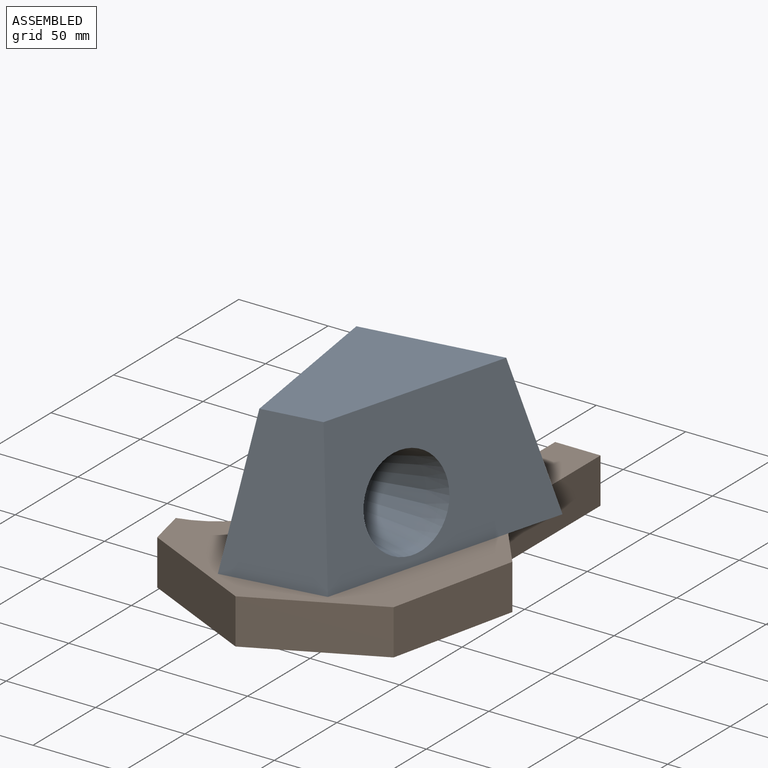
[diagram: assembled view]
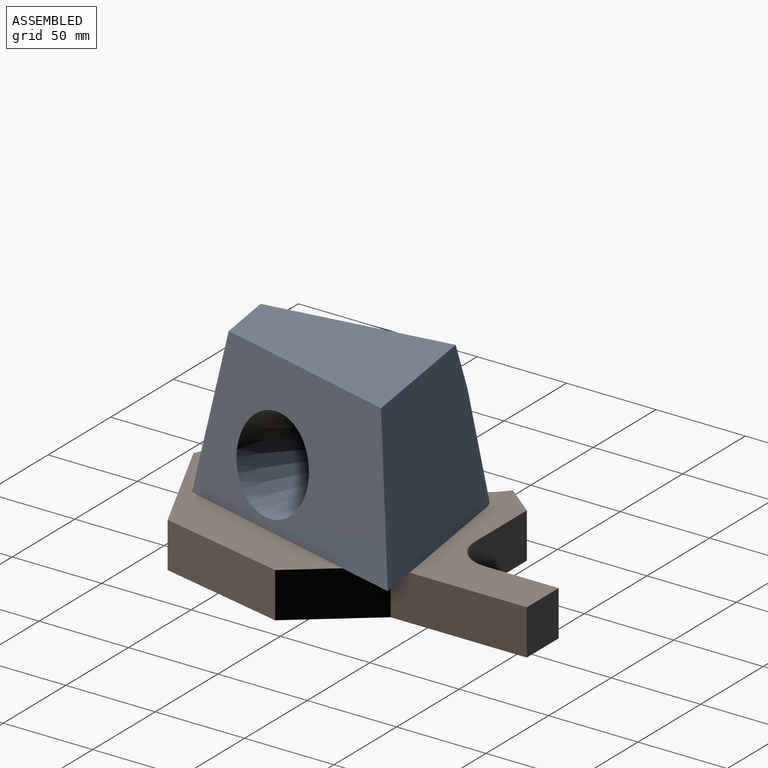
[diagram: assembled view, second angle]
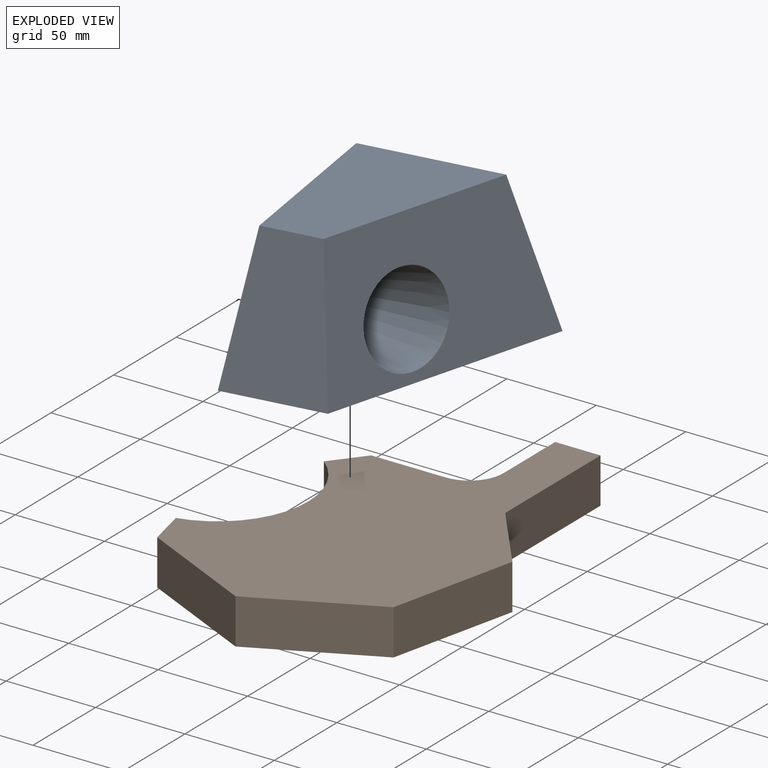
[diagram: exploded view]
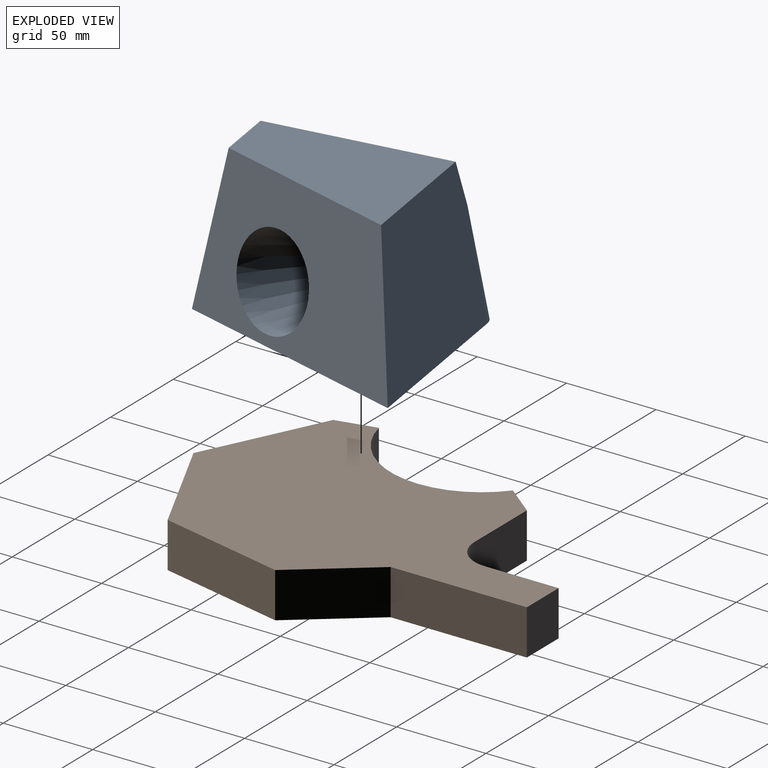
[diagram: exploded view, second angle]
ASSEMBLY  parts=2 mates=2
PART A: 8 faces, bbox 120.2x128.2x80.5 mm
  f0: cone r=10.16mm half-angle=10deg, axis (0,0,-1), area 466.9mm2, adj f1,f4,f6
  f1: plane 118.04x80.52mm, normal (-0.98,0,0.17), area 8496.4mm2, adj f0,f2,f4,f5,f6,f7
  f2: plane 80.52x56.32mm, normal (0,-0.98,0.17), area 3645.7mm2, adj f1,f3,f5,f6
  f3: plane 128.2x80.52mm, normal (0.9,-0.4,0.17), area 8154.2mm2, adj f2,f4,f5,f6,f7
  f4: plane 102.49x80.52mm, normal (0,0.98,0.17), area 7443.6mm2, adj f0,f1,f3,f5,f6
  f5: plane 99.81x76.71mm, normal (0,0,1), area 5467.7mm2, adj f1,f2,f3,f4
  f6: plane 128.2x112.65mm, normal (0,0,-1), area 10809.3mm2, adj f0,f1,f2,f3,f4
  f7: cone r=25.4mm half-angle=10deg, axis (0.9,-0.4,0.17), area 9066.2mm2, adj f1,f3
PART B: 14 faces, bbox 153.6x221.1x25.4 mm
  f0: plane 41.46x33.06mm, normal (0.78,0.62,0), area 1346.8mm2, adj f1,f11,f12,f13
  f1: plane 76.2x25.4mm, normal (1,0,0), area 1935.5mm2, adj f0,f2,f12,f13
  f2: plane 25.4x25.4mm, normal (0,1,0), area 645.2mm2, adj f1,f3,f12,f13
  f3: plane 41.22x25.4mm, normal (-1,0,0), area 1047.1mm2, adj f2,f4,f12,f13
  f4: cylinder r=19.05mm len=25.4mm, axis (0,0,-1), area 760.1mm2, adj f3,f5,f12,f13
  f5: plane 41.64x25.4mm, normal (0,1,0), area 1057.7mm2, adj f4,f6,f12,f13
  f6: plane 25.4x17.66mm, normal (-0.78,0.62,0), area 573.8mm2, adj f5,f7,f12,f13
  f7: cylinder r=50.8mm len=89.24mm, axis (0,0,-1), area 2895.5mm2, adj f6,f8,f12,f13
  f8: plane 25.4x22.03mm, normal (-0.97,-0.22,0), area 573.8mm2, adj f7,f9,f12,f13
  f9: plane 66.12x31.84mm, normal (-0.43,-0.9,0), area 1864.2mm2, adj f8,f10,f12,f13
  f10: plane 66.12x31.84mm, normal (0.43,-0.9,0), area 1864.2mm2, adj f9,f11,f12,f13
  f11: plane 71.55x25.4mm, normal (0.97,-0.22,0), area 1864.2mm2, adj f0,f10,f12,f13
  f12: plane 221.05x153.61mm, normal (0,0,1), area 18388.2mm2, adj f0,f1,f2,f3,f4,f5,f6,f7
  f13: plane 221.05x153.61mm, normal (0,0,-1), area 18388.2mm2, adj f0,f1,f2,f3,f4,f5,f6,f7
PLACE A rot(axis=(0,0,1),8.6deg) t=(13.34,-5.08,0)mm
PLACE B t=(-12.2,-7.57,-25.4)mm
MATE revolute A.f6 <-> B.f12  axis (0,0,-1) through (0,0,0)mm
MATE planar A.f6 <-> B.f12  axis (0,0,-1) through (0,0,0)mm
